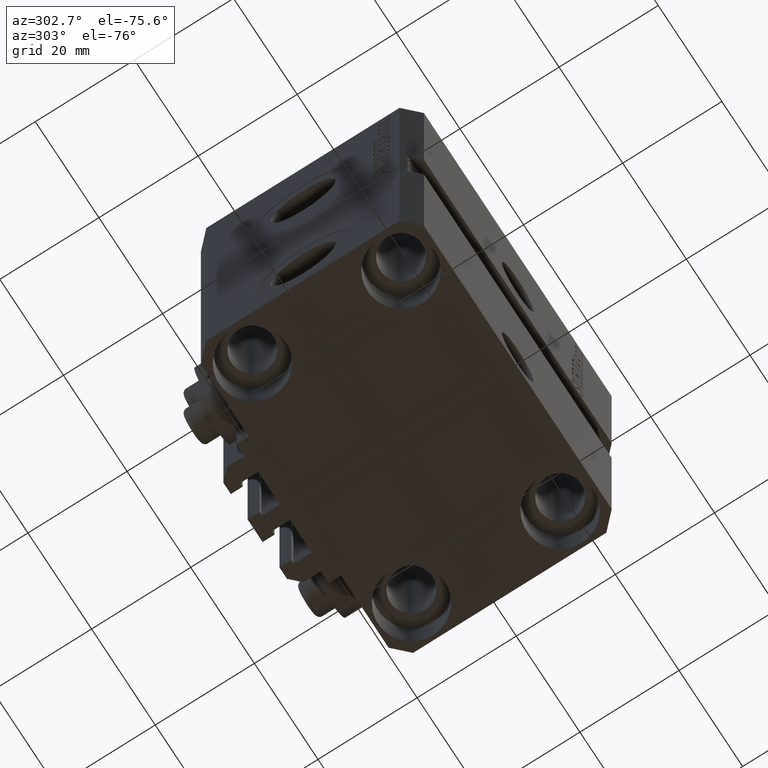
[diagram: clean part render]
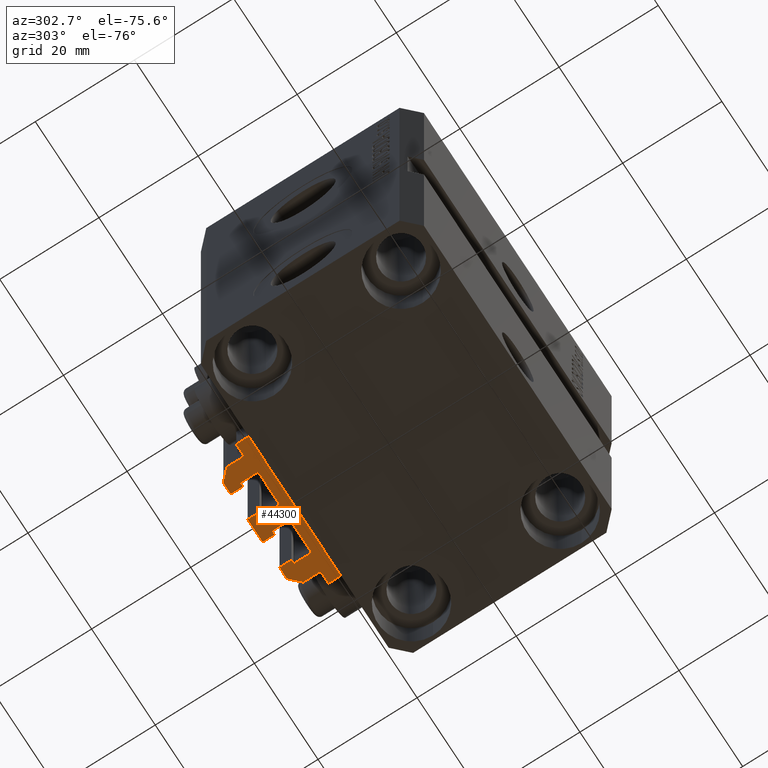
[diagram: same view with one face highlighted and labeled with its STEP entity id]
A machine part, auxiliary view. The second image highlights one B-rep face of the part: STEP entity #44300.
In plain terms, the highlighted planar face has unit normal (0, 0, 1).
Its self-contained STEP definition (entity closure, byte-faithful):
#15 = ORIENTED_EDGE ( 'NONE', *, *, #17119, .F. ) ;
#471 = CARTESIAN_POINT ( 'NONE',  ( 1.599999999999999645, 24.69999999999949480, -77.00000000000000000 ) ) ;
#552 = CARTESIAN_POINT ( 'NONE',  ( -2.350000000000003197, 30.49999999999949907, -77.00000000000000000 ) ) ;
#598 = CARTESIAN_POINT ( 'NONE',  ( -1.800000000000000933, 24.69999999999949480, -77.00000000000000000 ) ) ;
#681 = CARTESIAN_POINT ( 'NONE',  ( -14.50000000000000000, 22.49999999999949907, -77.00000000000000000 ) ) ;
#1112 = DIRECTION ( 'NONE',  ( 0.000000000000000000, 1.000000000000000000, 0.000000000000000000 ) ) ;
#1301 = CARTESIAN_POINT ( 'NONE',  ( -2.350000000000003197, 30.49999999999949907, -77.00000000000000000 ) ) ;
#1364 = EDGE_LOOP ( 'NONE', ( #16731, #37081, #13561, #15, #8185, #20559, #22789, #46026, #20064, #37725, #32414, #31298, #31851, #34028, #41262, #31369, #30008, #20918, #7004, #8168, #23689, #43796, #2270, #21073, #23547, #34704, #26912, #17148, #4338, #21258, #34611, #20430, #39190, #5572, #32430, #23001 ) ) ;
#1528 = CARTESIAN_POINT ( 'NONE',  ( 1.800000000000000933, 24.69999999999949480, -77.00000000000000000 ) ) ;
#1613 = DIRECTION ( 'NONE',  ( 1.000000000000000000, -6.308085367188365195E-15, 0.000000000000000000 ) ) ;
#1885 = DIRECTION ( 'NONE',  ( 0.000000000000000000, -1.000000000000000000, 0.000000000000000000 ) ) ;
#2209 = DIRECTION ( 'NONE',  ( -6.776263578034385456E-17, -1.000000000000000000, 0.000000000000000000 ) ) ;
#2270 = ORIENTED_EDGE ( 'NONE', *, *, #30873, .T. ) ;
#2636 = DIRECTION ( 'NONE',  ( 0.000000000000000000, 1.000000000000000000, 0.000000000000000000 ) ) ;
#2813 = VERTEX_POINT ( 'NONE', #13123 ) ;
#3084 = DIRECTION ( 'NONE',  ( -5.421010862427496532E-16, -1.000000000000000000, 0.000000000000000000 ) ) ;
#3355 = CARTESIAN_POINT ( 'NONE',  ( 12.20000000000000284, 25.19999999999950546, -77.00000000000000000 ) ) ;
#3475 = CARTESIAN_POINT ( 'NONE',  ( -10.00000000000000000, 30.49999999999948841, -77.00000000000000000 ) ) ;
#3606 = DIRECTION ( 'NONE',  ( -1.000000000000000000, -1.476360405086644852E-15, 0.000000000000000000 ) ) ;
#3830 = PLANE ( 'NONE',  #16534 ) ;
#3988 = EDGE_CURVE ( 'NONE', #43982, #12509, #15651, .T. ) ;
#4338 = ORIENTED_EDGE ( 'NONE', *, *, #4635, .F. ) ;
#4389 = DIRECTION ( 'NONE',  ( -0.7071067811865472397, -0.7071067811865479058, 0.000000000000000000 ) ) ;
#4463 = CARTESIAN_POINT ( 'NONE',  ( -14.50000000000000000, 24.99999999999949196, -77.00000000000000000 ) ) ;
#4538 = CARTESIAN_POINT ( 'NONE',  ( -2.350000000000003197, 28.09999999999950049, -77.00000000000000000 ) ) ;
#4591 = AXIS2_PLACEMENT_3D ( 'NONE', #25611, #36564, #43578 ) ;
#4635 = EDGE_CURVE ( 'NONE', #10099, #19949, #6005, .T. ) ;
#4920 = DIRECTION ( 'NONE',  ( 0.000000000000000000, 0.000000000000000000, 1.000000000000000000 ) ) ;
#5201 = EDGE_CURVE ( 'NONE', #36131, #14534, #34130, .T. ) ;
#5248 = CARTESIAN_POINT ( 'NONE',  ( 12.00000000000000355, 25.19999999999951257, -77.00000000000000000 ) ) ;
#5269 = CARTESIAN_POINT ( 'NONE',  ( -2.350000000000003197, 30.49999999999949907, -77.00000000000000000 ) ) ;
#5416 = EDGE_CURVE ( 'NONE', #19114, #17705, #37564, .T. ) ;
#5431 = VECTOR ( 'NONE', #3606, 1000.000000000000000 ) ;
#5572 = ORIENTED_EDGE ( 'NONE', *, *, #21603, .F. ) ;
#5684 = VERTEX_POINT ( 'NONE', #28675 ) ;
#5885 = CIRCLE ( 'NONE', #28983, 0.2000000000000005107 ) ;
#5922 = LINE ( 'NONE', #27632, #43210 ) ;
#6005 = LINE ( 'NONE', #20752, #23663 ) ;
#6091 = DIRECTION ( 'NONE',  ( 0.000000000000000000, 1.000000000000000000, 0.000000000000000000 ) ) ;
#6151 = VECTOR ( 'NONE', #24340, 1000.000000000000000 ) ;
#6199 = LINE ( 'NONE', #6683, #46421 ) ;
#6293 = VERTEX_POINT ( 'NONE', #44475 ) ;
#6523 = VERTEX_POINT ( 'NONE', #15301 ) ;
#6683 = CARTESIAN_POINT ( 'NONE',  ( -7.650000000000000355, 30.49999999999948486, -77.00000000000000000 ) ) ;
#6719 = VECTOR ( 'NONE', #1112, 1000.000000000000000 ) ;
#7004 = ORIENTED_EDGE ( 'NONE', *, *, #23862, .F. ) ;
#7113 = VERTEX_POINT ( 'NONE', #17078 ) ;
#7188 = DIRECTION ( 'NONE',  ( 1.084202172485506406E-15, 1.000000000000000000, 0.000000000000000000 ) ) ;
#7214 = LINE ( 'NONE', #43872, #23589 ) ;
#7472 = DIRECTION ( 'NONE',  ( 0.000000000000000000, 0.000000000000000000, 1.000000000000000000 ) ) ;
#7865 = EDGE_CURVE ( 'NONE', #18656, #7113, #9603, .T. ) ;
#7998 = DIRECTION ( 'NONE',  ( 0.000000000000000000, 0.000000000000000000, 1.000000000000000000 ) ) ;
#8168 = ORIENTED_EDGE ( 'NONE', *, *, #31932, .F. ) ;
#8185 = ORIENTED_EDGE ( 'NONE', *, *, #45779, .F. ) ;
#8303 = DIRECTION ( 'NONE',  ( 1.000000000000000000, 0.000000000000000000, 0.000000000000000000 ) ) ;
#8518 = CARTESIAN_POINT ( 'NONE',  ( 7.649999999999995914, 28.09999999999950404, -77.00000000000000000 ) ) ;
#8778 = DIRECTION ( 'NONE',  ( 1.000000000000000000, 0.000000000000000000, 0.000000000000000000 ) ) ;
#9314 = VERTEX_POINT ( 'NONE', #43541 ) ;
#9397 = CARTESIAN_POINT ( 'NONE',  ( 14.49999999999999822, 24.99999999999950617, -77.00000000000000000 ) ) ;
#9581 = CIRCLE ( 'NONE', #32653, 0.1999999999999987899 ) ;
#9603 = LINE ( 'NONE', #13212, #18399 ) ;
#10065 = CIRCLE ( 'NONE', #17020, 0.2000000000000016209 ) ;
#10099 = VERTEX_POINT ( 'NONE', #26225 ) ;
#10381 = EDGE_CURVE ( 'NONE', #47067, #23561, #30759, .T. ) ;
#11471 = DIRECTION ( 'NONE',  ( 0.000000000000000000, 1.000000000000000000, 0.000000000000000000 ) ) ;
#11610 = CARTESIAN_POINT ( 'NONE',  ( 8.200000000000001066, 24.69999999999949125, -77.00000000000000000 ) ) ;
#11698 = VERTEX_POINT ( 'NONE', #3475 ) ;
#11793 = VECTOR ( 'NONE', #11471, 1000.000000000000000 ) ;
#11938 = CARTESIAN_POINT ( 'NONE',  ( -14.50000000000000000, 22.49999999999949907, -77.00000000000000000 ) ) ;
#12180 = VERTEX_POINT ( 'NONE', #15010 ) ;
#12381 = CARTESIAN_POINT ( 'NONE',  ( -8.199999999999997513, 28.09999999999948628, -77.00000000000000000 ) ) ;
#12509 = VERTEX_POINT ( 'NONE', #31053 ) ;
#12669 = EDGE_CURVE ( 'NONE', #26348, #43852, #22800, .T. ) ;
#12723 = EDGE_CURVE ( 'NONE', #18656, #46047, #22331, .T. ) ;
#12774 = DIRECTION ( 'NONE',  ( 0.000000000000000000, 0.000000000000000000, 1.000000000000000000 ) ) ;
#12869 = DIRECTION ( 'NONE',  ( 1.000000000000000000, 0.000000000000000000, 0.000000000000000000 ) ) ;
#13123 = CARTESIAN_POINT ( 'NONE',  ( -1.600000000000003197, 27.89999999999950120, -77.00000000000000000 ) ) ;
#13212 = CARTESIAN_POINT ( 'NONE',  ( -1.800000000000000933, 24.49999999999949551, -77.00000000000000000 ) ) ;
#13513 = CARTESIAN_POINT ( 'NONE',  ( 2.349999999999999645, 28.09999999999950049, -77.00000000000000000 ) ) ;
#13561 = ORIENTED_EDGE ( 'NONE', *, *, #40086, .T. ) ;
#13592 = LINE ( 'NONE', #20838, #47255 ) ;
#13616 = CIRCLE ( 'NONE', #39759, 0.1999999999999979294 ) ;
#13636 = DIRECTION ( 'NONE',  ( 1.000000000000000000, 0.000000000000000000, 0.000000000000000000 ) ) ;
#13830 = DIRECTION ( 'NONE',  ( 6.938893903907212600E-16, 1.000000000000000000, 0.000000000000000000 ) ) ;
#13956 = LINE ( 'NONE', #47250, #6151 ) ;
#14112 = VERTEX_POINT ( 'NONE', #552 ) ;
#14128 = AXIS2_PLACEMENT_3D ( 'NONE', #46061, #12774, #17350 ) ;
#14159 = AXIS2_PLACEMENT_3D ( 'NONE', #35596, #38980, #20920 ) ;
#14202 = LINE ( 'NONE', #33208, #20149 ) ;
#14397 = DIRECTION ( 'NONE',  ( 1.000000000000000000, 6.308085367188338373E-15, 0.000000000000000000 ) ) ;
#14404 = VECTOR ( 'NONE', #1613, 1000.000000000000000 ) ;
#14534 = VERTEX_POINT ( 'NONE', #36895 ) ;
#14754 = EDGE_CURVE ( 'NONE', #47067, #36131, #13956, .T. ) ;
#14889 = CARTESIAN_POINT ( 'NONE',  ( 7.649999999999995914, 28.09999999999950404, -77.00000000000000000 ) ) ;
#15010 = CARTESIAN_POINT ( 'NONE',  ( 12.00000000000000178, 28.49999999999950973, -77.00000000000000000 ) ) ;
#15201 = DIRECTION ( 'NONE',  ( 1.000000000000000000, 0.000000000000000000, 0.000000000000000000 ) ) ;
#15301 = CARTESIAN_POINT ( 'NONE',  ( -12.20000000000000107, 24.99999999999948841, -77.00000000000000000 ) ) ;
#15379 = DIRECTION ( 'NONE',  ( 0.000000000000000000, -1.000000000000000000, 0.000000000000000000 ) ) ;
#15546 = LINE ( 'NONE', #26853, #43515 ) ;
#15651 = LINE ( 'NONE', #4538, #14404 ) ;
#15745 = LINE ( 'NONE', #45162, #20282 ) ;
#16018 = DIRECTION ( 'NONE',  ( 1.000000000000000000, 0.000000000000000000, 0.000000000000000000 ) ) ;
#16471 = VECTOR ( 'NONE', #38318, 1000.000000000000000 ) ;
#16534 = AXIS2_PLACEMENT_3D ( 'NONE', #3355, #33006, #44115 ) ;
#16694 = EDGE_CURVE ( 'NONE', #23260, #12180, #24437, .T. ) ;
#16731 = ORIENTED_EDGE ( 'NONE', *, *, #47625, .F. ) ;
#16740 = CARTESIAN_POINT ( 'NONE',  ( 8.400000000000000355, 24.69999999999949125, -77.00000000000000000 ) ) ;
#16751 = CARTESIAN_POINT ( 'NONE',  ( -1.800000000000000933, 24.49999999999949551, -77.00000000000000000 ) ) ;
#16940 = DIRECTION ( 'NONE',  ( 0.000000000000000000, 0.000000000000000000, 1.000000000000000000 ) ) ;
#17020 = AXIS2_PLACEMENT_3D ( 'NONE', #1528, #4920, #8778 ) ;
#17078 = CARTESIAN_POINT ( 'NONE',  ( -8.199999999999999289, 24.49999999999949551, -77.00000000000000000 ) ) ;
#17119 = EDGE_CURVE ( 'NONE', #38735, #18791, #36822, .T. ) ;
#17148 = ORIENTED_EDGE ( 'NONE', *, *, #33946, .F. ) ;
#17260 = DIRECTION ( 'NONE',  ( 0.000000000000000000, 0.000000000000000000, 1.000000000000000000 ) ) ;
#17350 = DIRECTION ( 'NONE',  ( 1.000000000000000000, 0.000000000000000000, 0.000000000000000000 ) ) ;
#17631 = CARTESIAN_POINT ( 'NONE',  ( 1.800000000000000933, 24.49999999999949196, -77.00000000000000000 ) ) ;
#17705 = VERTEX_POINT ( 'NONE', #16740 ) ;
#17739 = LINE ( 'NONE', #43770, #41210 ) ;
#17890 = VECTOR ( 'NONE', #14397, 1000.000000000000000 ) ;
#18399 = VECTOR ( 'NONE', #46021, 1000.000000000000000 ) ;
#18595 = CARTESIAN_POINT ( 'NONE',  ( 8.200000000000001066, 24.49999999999949196, -77.00000000000000000 ) ) ;
#18656 = VERTEX_POINT ( 'NONE', #16751 ) ;
#18791 = VERTEX_POINT ( 'NONE', #43256 ) ;
#19114 = VERTEX_POINT ( 'NONE', #18595 ) ;
#19356 = DIRECTION ( 'NONE',  ( -1.000000000000000000, 0.000000000000000000, 0.000000000000000000 ) ) ;
#19547 = EDGE_CURVE ( 'NONE', #23260, #5684, #42509, .T. ) ;
#19949 = VERTEX_POINT ( 'NONE', #14889 ) ;
#19963 = VERTEX_POINT ( 'NONE', #26909 ) ;
#20064 = ORIENTED_EDGE ( 'NONE', *, *, #10381, .T. ) ;
#20149 = VECTOR ( 'NONE', #7188, 1000.000000000000000 ) ;
#20282 = VECTOR ( 'NONE', #27283, 1000.000000000000000 ) ;
#20314 = VERTEX_POINT ( 'NONE', #28449 ) ;
#20430 = ORIENTED_EDGE ( 'NONE', *, *, #16694, .F. ) ;
#20494 = LINE ( 'NONE', #31315, #16471 ) ;
#20548 = EDGE_CURVE ( 'NONE', #14112, #43982, #20947, .T. ) ;
#20559 = ORIENTED_EDGE ( 'NONE', *, *, #24304, .F. ) ;
#20752 = CARTESIAN_POINT ( 'NONE',  ( 7.649999999999995026, 30.49999999999949196, -77.00000000000000000 ) ) ;
#20776 = AXIS2_PLACEMENT_3D ( 'NONE', #598, #44489, #16018 ) ;
#20838 = CARTESIAN_POINT ( 'NONE',  ( 14.49999999999999645, 22.49999999999949907, -77.00000000000000000 ) ) ;
#20882 = CARTESIAN_POINT ( 'NONE',  ( 12.20000000000000284, 25.19999999999950546, -77.00000000000000000 ) ) ;
#20918 = ORIENTED_EDGE ( 'NONE', *, *, #30874, .T. ) ;
#20920 = DIRECTION ( 'NONE',  ( 1.000000000000000000, 0.000000000000000000, 0.000000000000000000 ) ) ;
#20947 = LINE ( 'NONE', #5269, #34842 ) ;
#21073 = ORIENTED_EDGE ( 'NONE', *, *, #21495, .F. ) ;
#21258 = ORIENTED_EDGE ( 'NONE', *, *, #31359, .F. ) ;
#21280 = EDGE_CURVE ( 'NONE', #43852, #43073, #13592, .T. ) ;
#21495 = EDGE_CURVE ( 'NONE', #19114, #30370, #37666, .T. ) ;
#21603 = EDGE_CURVE ( 'NONE', #43073, #5684, #15745, .T. ) ;
#21769 = VECTOR ( 'NONE', #2636, 1000.000000000000000 ) ;
#22033 = VERTEX_POINT ( 'NONE', #4463 ) ;
#22331 = CIRCLE ( 'NONE', #20776, 0.1999999999999994282 ) ;
#22376 = CARTESIAN_POINT ( 'NONE',  ( -12.00000000000000000, 28.49999999999948841, -77.00000000000000000 ) ) ;
#22789 = ORIENTED_EDGE ( 'NONE', *, *, #5201, .F. ) ;
#22800 = LINE ( 'NONE', #11938, #24591 ) ;
#22963 = CARTESIAN_POINT ( 'NONE',  ( -8.399999999999996803, 27.89999999999948699, -77.00000000000000000 ) ) ;
#23001 = ORIENTED_EDGE ( 'NONE', *, *, #12669, .F. ) ;
#23260 = VERTEX_POINT ( 'NONE', #5248 ) ;
#23486 = CARTESIAN_POINT ( 'NONE',  ( 1.800000000000000933, 28.09999999999950049, -77.00000000000000000 ) ) ;
#23547 = ORIENTED_EDGE ( 'NONE', *, *, #5416, .T. ) ;
#23561 = VERTEX_POINT ( 'NONE', #22963 ) ;
#23589 = VECTOR ( 'NONE', #36625, 1000.000000000000000 ) ;
#23663 = VECTOR ( 'NONE', #35423, 1000.000000000000000 ) ;
#23689 = ORIENTED_EDGE ( 'NONE', *, *, #27312, .T. ) ;
#23862 = EDGE_CURVE ( 'NONE', #6293, #33077, #39284, .T. ) ;
#24304 = EDGE_CURVE ( 'NONE', #14534, #11698, #6199, .T. ) ;
#24340 = DIRECTION ( 'NONE',  ( 1.000000000000000000, 0.000000000000000000, 0.000000000000000000 ) ) ;
#24437 = LINE ( 'NONE', #28272, #35478 ) ;
#24591 = VECTOR ( 'NONE', #8303, 1000.000000000000000 ) ;
#24693 = CARTESIAN_POINT ( 'NONE',  ( -12.00000000000000000, 28.49999999999948841, -77.00000000000000000 ) ) ;
#24858 = DIRECTION ( 'NONE',  ( 0.000000000000000000, 0.000000000000000000, 1.000000000000000000 ) ) ;
#25611 = CARTESIAN_POINT ( 'NONE',  ( -8.199999999999997513, 27.89999999999948699, -77.00000000000000000 ) ) ;
#26225 = CARTESIAN_POINT ( 'NONE',  ( 7.649999999999995026, 30.49999999999949196, -77.00000000000000000 ) ) ;
#26312 = DIRECTION ( 'NONE',  ( 1.000000000000000000, 0.000000000000000000, 0.000000000000000000 ) ) ;
#26348 = VERTEX_POINT ( 'NONE', #681 ) ;
#26853 = CARTESIAN_POINT ( 'NONE',  ( 12.00000000000000178, 28.49999999999950973, -77.00000000000000000 ) ) ;
#26909 = CARTESIAN_POINT ( 'NONE',  ( 8.200000000000001066, 28.09999999999950759, -77.00000000000000000 ) ) ;
#26912 = ORIENTED_EDGE ( 'NONE', *, *, #30342, .T. ) ;
#27283 = DIRECTION ( 'NONE',  ( -1.000000000000000000, 0.000000000000000000, 0.000000000000000000 ) ) ;
#27312 = EDGE_CURVE ( 'NONE', #35239, #45704, #39572, .T. ) ;
#27632 = CARTESIAN_POINT ( 'NONE',  ( 1.800000000000000933, 28.09999999999949694, -77.00000000000000000 ) ) ;
#27768 = CARTESIAN_POINT ( 'NONE',  ( -1.600000000000000533, 27.89999999999950120, -77.00000000000000000 ) ) ;
#27868 = DIRECTION ( 'NONE',  ( 1.000000000000000000, 6.308085367188405427E-15, 0.000000000000000000 ) ) ;
#28247 = LINE ( 'NONE', #27768, #32589 ) ;
#28272 = CARTESIAN_POINT ( 'NONE',  ( 12.00000000000000178, 25.19999999999951257, -77.00000000000000000 ) ) ;
#28413 = LINE ( 'NONE', #43132, #44983 ) ;
#28449 = CARTESIAN_POINT ( 'NONE',  ( 8.400000000000000355, 27.89999999999950475, -77.00000000000000000 ) ) ;
#28675 = CARTESIAN_POINT ( 'NONE',  ( 12.20000000000000284, 24.99999999999950617, -77.00000000000000000 ) ) ;
#28983 = AXIS2_PLACEMENT_3D ( 'NONE', #32077, #24858, #43662 ) ;
#29042 = EDGE_CURVE ( 'NONE', #12180, #44731, #15546, .T. ) ;
#29064 = LINE ( 'NONE', #33151, #11793 ) ;
#29400 = LINE ( 'NONE', #47298, #5431 ) ;
#29950 = CARTESIAN_POINT ( 'NONE',  ( 8.200000000000001066, 24.49999999999949196, -77.00000000000000000 ) ) ;
#30008 = ORIENTED_EDGE ( 'NONE', *, *, #20548, .F. ) ;
#30342 = EDGE_CURVE ( 'NONE', #20314, #19963, #5885, .T. ) ;
#30370 = VERTEX_POINT ( 'NONE', #17631 ) ;
#30401 = EDGE_CURVE ( 'NONE', #2813, #12509, #13616, .T. ) ;
#30759 = CIRCLE ( 'NONE', #4591, 0.1999999999999987899 ) ;
#30873 = EDGE_CURVE ( 'NONE', #37542, #30370, #10065, .T. ) ;
#30874 = EDGE_CURVE ( 'NONE', #14112, #33077, #34321, .T. ) ;
#31053 = CARTESIAN_POINT ( 'NONE',  ( -1.800000000000000933, 28.09999999999949694, -77.00000000000000000 ) ) ;
#31298 = ORIENTED_EDGE ( 'NONE', *, *, #7865, .F. ) ;
#31315 = CARTESIAN_POINT ( 'NONE',  ( -12.20000000000000107, 24.99999999999948841, -77.00000000000000000 ) ) ;
#31359 = EDGE_CURVE ( 'NONE', #44731, #10099, #29400, .T. ) ;
#31369 = ORIENTED_EDGE ( 'NONE', *, *, #3988, .F. ) ;
#31851 = ORIENTED_EDGE ( 'NONE', *, *, #12723, .T. ) ;
#31932 = EDGE_CURVE ( 'NONE', #35239, #6293, #5922, .T. ) ;
#32077 = CARTESIAN_POINT ( 'NONE',  ( 8.200000000000001066, 27.89999999999950475, -77.00000000000000000 ) ) ;
#32398 = CARTESIAN_POINT ( 'NONE',  ( 14.49999999999999645, 22.49999999999949907, -77.00000000000000000 ) ) ;
#32414 = ORIENTED_EDGE ( 'NONE', *, *, #42882, .T. ) ;
#32430 = ORIENTED_EDGE ( 'NONE', *, *, #21280, .F. ) ;
#32589 = VECTOR ( 'NONE', #2209, 1000.000000000000000 ) ;
#32635 = EDGE_CURVE ( 'NONE', #9314, #23561, #14202, .T. ) ;
#32653 = AXIS2_PLACEMENT_3D ( 'NONE', #35235, #16940, #38618 ) ;
#32665 = CARTESIAN_POINT ( 'NONE',  ( 1.600000000000000533, 27.89999999999950120, -77.00000000000000000 ) ) ;
#33006 = DIRECTION ( 'NONE',  ( 0.000000000000000000, 0.000000000000000000, 1.000000000000000000 ) ) ;
#33077 = VERTEX_POINT ( 'NONE', #38917 ) ;
#33151 = CARTESIAN_POINT ( 'NONE',  ( 1.600000000000000533, 24.69999999999949480, -77.00000000000000000 ) ) ;
#33171 = VECTOR ( 'NONE', #12869, 1000.000000000000000 ) ;
#33208 = CARTESIAN_POINT ( 'NONE',  ( -8.400000000000000355, 24.69999999999949480, -77.00000000000000000 ) ) ;
#33946 = EDGE_CURVE ( 'NONE', #19949, #19963, #41555, .T. ) ;
#34028 = ORIENTED_EDGE ( 'NONE', *, *, #40615, .F. ) ;
#34130 = LINE ( 'NONE', #46136, #6719 ) ;
#34321 = LINE ( 'NONE', #1301, #33171 ) ;
#34611 = ORIENTED_EDGE ( 'NONE', *, *, #29042, .F. ) ;
#34704 = ORIENTED_EDGE ( 'NONE', *, *, #42337, .F. ) ;
#34749 = VECTOR ( 'NONE', #15379, 1000.000000000000000 ) ;
#34842 = VECTOR ( 'NONE', #1885, 1000.000000000000000 ) ;
#35235 = CARTESIAN_POINT ( 'NONE',  ( -8.199999999999999289, 24.69999999999949480, -77.00000000000000000 ) ) ;
#35239 = VERTEX_POINT ( 'NONE', #23486 ) ;
#35423 = DIRECTION ( 'NONE',  ( 3.614007241618365534E-16, -1.000000000000000000, 0.000000000000000000 ) ) ;
#35445 = CARTESIAN_POINT ( 'NONE',  ( -1.600000000000000755, 24.69999999999949480, -77.00000000000000000 ) ) ;
#35478 = VECTOR ( 'NONE', #6091, 1000.000000000000000 ) ;
#35596 = CARTESIAN_POINT ( 'NONE',  ( 1.800000000000000933, 27.89999999999950120, -77.00000000000000000 ) ) ;
#35615 = DIRECTION ( 'NONE',  ( -1.000000000000000000, 1.476360405086644852E-15, 0.000000000000000000 ) ) ;
#36131 = VERTEX_POINT ( 'NONE', #43297 ) ;
#36386 = FACE_OUTER_BOUND ( 'NONE', #1364, .T. ) ;
#36564 = DIRECTION ( 'NONE',  ( 0.000000000000000000, 0.000000000000000000, 1.000000000000000000 ) ) ;
#36625 = DIRECTION ( 'NONE',  ( 0.000000000000000000, -1.000000000000000000, 0.000000000000000000 ) ) ;
#36822 = LINE ( 'NONE', #22376, #34749 ) ;
#36895 = CARTESIAN_POINT ( 'NONE',  ( -7.650000000000000355, 30.49999999999948486, -77.00000000000000000 ) ) ;
#37081 = ORIENTED_EDGE ( 'NONE', *, *, #42217, .F. ) ;
#37542 = VERTEX_POINT ( 'NONE', #471 ) ;
#37564 = CIRCLE ( 'NONE', #39103, 0.1999999999999987899 ) ;
#37666 = LINE ( 'NONE', #29950, #43385 ) ;
#37725 = ORIENTED_EDGE ( 'NONE', *, *, #32635, .F. ) ;
#38318 = DIRECTION ( 'NONE',  ( -1.000000000000000000, 1.508455196501571429E-15, 0.000000000000000000 ) ) ;
#38618 = DIRECTION ( 'NONE',  ( 1.000000000000000000, 0.000000000000000000, 0.000000000000000000 ) ) ;
#38735 = VERTEX_POINT ( 'NONE', #24693 ) ;
#38917 = CARTESIAN_POINT ( 'NONE',  ( 2.349999999999999645, 30.49999999999949907, -77.00000000000000000 ) ) ;
#38980 = DIRECTION ( 'NONE',  ( 0.000000000000000000, 0.000000000000000000, 1.000000000000000000 ) ) ;
#39103 = AXIS2_PLACEMENT_3D ( 'NONE', #11610, #7998, #26312 ) ;
#39112 = CARTESIAN_POINT ( 'NONE',  ( -2.350000000000003197, 28.09999999999950049, -77.00000000000000000 ) ) ;
#39190 = ORIENTED_EDGE ( 'NONE', *, *, #19547, .T. ) ;
#39284 = LINE ( 'NONE', #13513, #21769 ) ;
#39442 = EDGE_CURVE ( 'NONE', #37542, #45704, #29064, .T. ) ;
#39572 = CIRCLE ( 'NONE', #14159, 0.1999999999999981515 ) ;
#39759 = AXIS2_PLACEMENT_3D ( 'NONE', #40744, #7472, #15201 ) ;
#40086 = EDGE_CURVE ( 'NONE', #6523, #18791, #40305, .T. ) ;
#40305 = CIRCLE ( 'NONE', #14128, 0.2000000000000005107 ) ;
#40615 = EDGE_CURVE ( 'NONE', #2813, #46047, #28247, .T. ) ;
#40744 = CARTESIAN_POINT ( 'NONE',  ( -1.800000000000000933, 27.89999999999950120, -77.00000000000000000 ) ) ;
#41210 = VECTOR ( 'NONE', #4389, 999.9999999999998863 ) ;
#41262 = ORIENTED_EDGE ( 'NONE', *, *, #30401, .T. ) ;
#41555 = LINE ( 'NONE', #8518, #17890 ) ;
#42217 = EDGE_CURVE ( 'NONE', #6523, #22033, #20494, .T. ) ;
#42337 = EDGE_CURVE ( 'NONE', #20314, #17705, #28413, .T. ) ;
#42509 = CIRCLE ( 'NONE', #44062, 0.1999999999999987899 ) ;
#42882 = EDGE_CURVE ( 'NONE', #9314, #7113, #9581, .T. ) ;
#43073 = VERTEX_POINT ( 'NONE', #9397 ) ;
#43132 = CARTESIAN_POINT ( 'NONE',  ( 8.400000000000000355, 27.89999999999950475, -77.00000000000000000 ) ) ;
#43210 = VECTOR ( 'NONE', #27868, 1000.000000000000000 ) ;
#43256 = CARTESIAN_POINT ( 'NONE',  ( -12.00000000000000000, 25.19999999999949125, -77.00000000000000000 ) ) ;
#43297 = CARTESIAN_POINT ( 'NONE',  ( -7.650000000000000355, 28.09999999999948628, -77.00000000000000000 ) ) ;
#43385 = VECTOR ( 'NONE', #19356, 1000.000000000000000 ) ;
#43515 = VECTOR ( 'NONE', #44728, 1000.000000000000000 ) ;
#43541 = CARTESIAN_POINT ( 'NONE',  ( -8.399999999999998579, 24.69999999999949480, -77.00000000000000000 ) ) ;
#43578 = DIRECTION ( 'NONE',  ( 1.000000000000000000, 0.000000000000000000, 0.000000000000000000 ) ) ;
#43662 = DIRECTION ( 'NONE',  ( 1.000000000000000000, 0.000000000000000000, 0.000000000000000000 ) ) ;
#43770 = CARTESIAN_POINT ( 'NONE',  ( -10.00000000000000000, 30.49999999999948841, -77.00000000000000000 ) ) ;
#43796 = ORIENTED_EDGE ( 'NONE', *, *, #39442, .F. ) ;
#43852 = VERTEX_POINT ( 'NONE', #32398 ) ;
#43872 = CARTESIAN_POINT ( 'NONE',  ( -14.50000000000000000, 24.99999999999949196, -77.00000000000000000 ) ) ;
#43982 = VERTEX_POINT ( 'NONE', #39112 ) ;
#44062 = AXIS2_PLACEMENT_3D ( 'NONE', #20882, #17260, #13636 ) ;
#44115 = DIRECTION ( 'NONE',  ( 1.000000000000000000, 0.000000000000000000, -0.000000000000000000 ) ) ;
#44300 = ADVANCED_FACE ( 'NONE', ( #36386 ), #3830, .F. ) ;
#44475 = CARTESIAN_POINT ( 'NONE',  ( 2.349999999999999645, 28.09999999999950049, -77.00000000000000000 ) ) ;
#44489 = DIRECTION ( 'NONE',  ( 0.000000000000000000, 0.000000000000000000, 1.000000000000000000 ) ) ;
#44728 = DIRECTION ( 'NONE',  ( -0.7071067811865507924, 0.7071067811865441310, 0.000000000000000000 ) ) ;
#44731 = VERTEX_POINT ( 'NONE', #46868 ) ;
#44983 = VECTOR ( 'NONE', #3084, 1000.000000000000000 ) ;
#45162 = CARTESIAN_POINT ( 'NONE',  ( 14.49999999999999822, 24.99999999999950617, -77.00000000000000000 ) ) ;
#45704 = VERTEX_POINT ( 'NONE', #32665 ) ;
#45779 = EDGE_CURVE ( 'NONE', #11698, #38735, #17739, .T. ) ;
#46021 = DIRECTION ( 'NONE',  ( -1.000000000000000000, 0.000000000000000000, 0.000000000000000000 ) ) ;
#46026 = ORIENTED_EDGE ( 'NONE', *, *, #14754, .F. ) ;
#46047 = VERTEX_POINT ( 'NONE', #35445 ) ;
#46061 = CARTESIAN_POINT ( 'NONE',  ( -12.20000000000000107, 25.19999999999949125, -77.00000000000000000 ) ) ;
#46136 = CARTESIAN_POINT ( 'NONE',  ( -7.650000000000000355, 28.09999999999948628, -77.00000000000000000 ) ) ;
#46421 = VECTOR ( 'NONE', #35615, 1000.000000000000000 ) ;
#46868 = CARTESIAN_POINT ( 'NONE',  ( 9.999999999999994671, 30.49999999999949551, -77.00000000000000000 ) ) ;
#47067 = VERTEX_POINT ( 'NONE', #12381 ) ;
#47250 = CARTESIAN_POINT ( 'NONE',  ( -8.199999999999997513, 28.09999999999948628, -77.00000000000000000 ) ) ;
#47255 = VECTOR ( 'NONE', #13830, 1000.000000000000000 ) ;
#47298 = CARTESIAN_POINT ( 'NONE',  ( 9.999999999999994671, 30.49999999999949551, -77.00000000000000000 ) ) ;
#47625 = EDGE_CURVE ( 'NONE', #22033, #26348, #7214, .T. ) ;